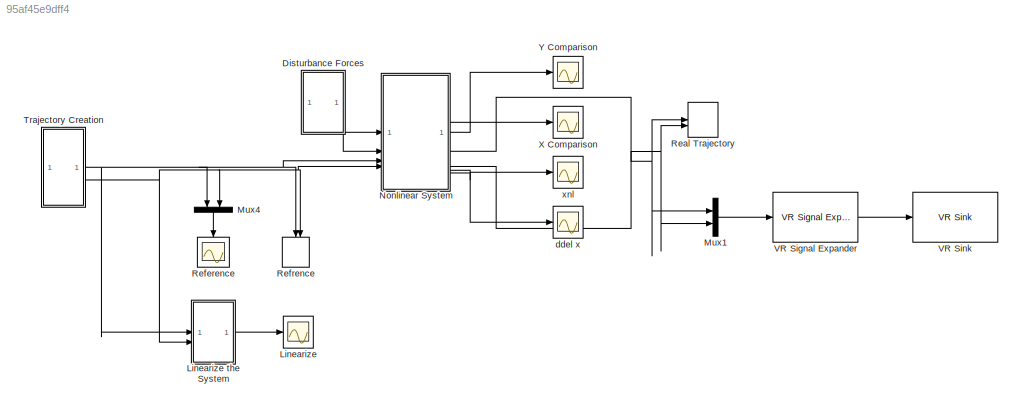
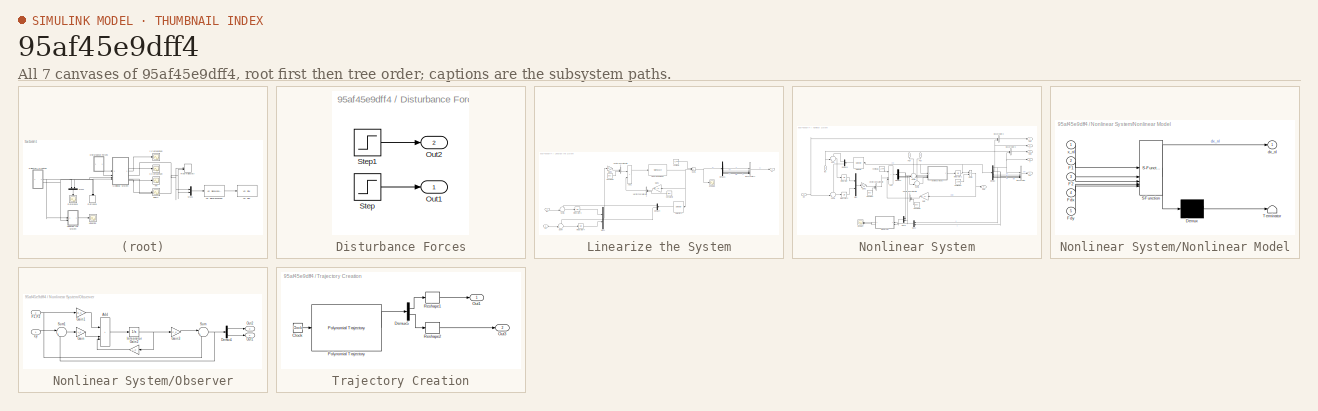
[diagram: thumbnail index - all 7 canvases of the model, root first then tree order]
MODEL slx_95af45e9dff4
KIND model
CONFIG AbsTol = auto
CONFIG EnableMultiTasking = off
CONFIG FixedStep = 0.01
CONFIG MaxStep = auto
CONFIG MinStep = auto
CONFIG RelTol = 1e-3
CONFIG SampleTimeConstraint = Unconstrained
CONFIG SolverName = ode5
CONFIG StartTime = 0.0
CONFIG StopTime = 30
BLOCK [SubSystem] Disturbance Forces
BLOCK [Outport] Disturbance Forces/Out1
BLOCK [Outport] Disturbance Forces/Out2
  Port = 2
BLOCK [Step] Disturbance Forces/Step
  SampleTime = 0
  Time = 10
BLOCK [Step] Disturbance Forces/Step1
  After = 0.5
  SampleTime = 0
  Time = 10
BLOCK [Scope] Linearize
  Floating = off
  NumInputPorts = 1
  ScopeSpecificationString = Simulink.scopes.TimeScopeBlockCfg('CurrentConfiguration', extmgr.ConfigurationSet(extmgr.Configuration('Core','General UI',true),extmgr.Configuration('Core','Source UI',true),extmgr.Configuration('Sources','WiredSimulink',true,'DataLoggingVariableName','grafik','DataLogging',true,'DataLoggingSaveFormat','Array'),extmgr.Configuration('Visuals','Time Domain',true,'SerializedDisplays',{struct('MinYLi...<+1636ch>
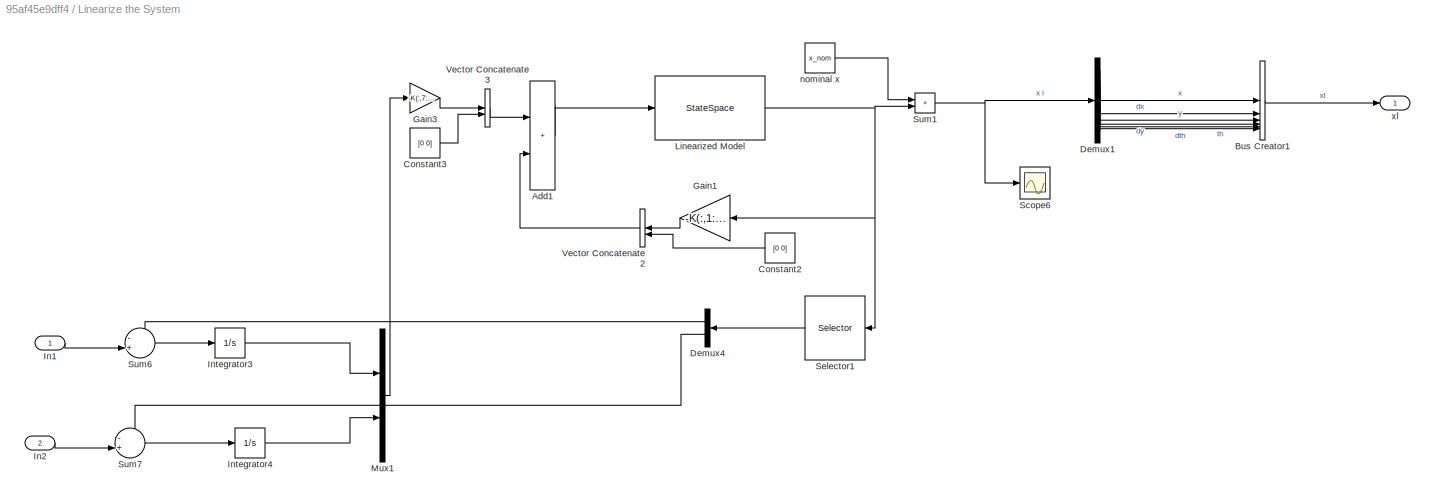
BLOCK [SubSystem] Linearize the System
BLOCK [Sum] Linearize the System/Add1
  IconShape = rectangular
  Inputs = 2
BLOCK [BusCreator] Linearize the System/Bus Creator1
  DisplayOption = bar
  InheritFromInputs = on
  Inputs = 6
BLOCK [Constant] Linearize the System/Constant2
  NameLocation = top
  Value = [0 0]
BLOCK [Constant] Linearize the System/Constant3
  Value = [0 0]
BLOCK [Demux] Linearize the System/Demux1
  Outputs = 6
BLOCK [Demux] Linearize the System/Demux4
  NameLocation = top
  Outputs = 2
BLOCK [Gain] Linearize the System/Gain1
  Gain = -K(:,1:6)
  Multiplication = Matrix(K*u)
  NameLocation = top
BLOCK [Gain] Linearize the System/Gain3
  Gain = -K(:,7:8)
  Multiplication = Matrix(K*u)
BLOCK [Inport] Linearize the System/In1
BLOCK [Inport] Linearize the System/In2
  Port = 2
BLOCK [Integrator] Linearize the System/Integrator3
BLOCK [Integrator] Linearize the System/Integrator4
BLOCK [StateSpace] Linearize the System/Linearized Model
  A = A
  B = B
  C = eye(6)
  D = zeros(6,4)
  InitialCondition = Ic_xl
BLOCK [Mux] Linearize the System/Mux1
  DisplayOption = bar
  Inputs = 2
BLOCK [Scope] Linearize the System/Scope6
  Floating = off
  NumInputPorts = 1
  ScopeSpecificationString = Simulink.scopes.TimeScopeBlockCfg('CurrentConfiguration', extmgr.ConfigurationSet(extmgr.Configuration('Core','General UI',true),extmgr.Configuration('Core','Source UI',true),extmgr.Configuration('Sources','WiredSimulink',true,'DataLoggingVariableName','ScopeData1'),extmgr.Configuration('Visuals','Time Domain',true),extmgr.Configuration('Tools','Plot Navigation',true),extmgr.Configuration('Tools',...<+40ch>
BLOCK [Selector] Linearize the System/Selector1
  IndexOptions = Index vector (dialog)
  Indices = [1 3]
  InputPortWidth = 6
  NameLocation = top
  OutputSizes = 1
BLOCK [Sum] Linearize the System/Sum1
  IconShape = rectangular
BLOCK [Sum] Linearize the System/Sum6
  Inputs = -+|
BLOCK [Sum] Linearize the System/Sum7
  Inputs = -+|
BLOCK [Concatenate] Linearize the System/Vector Concatenate2
  NameLocation = top
BLOCK [Concatenate] Linearize the System/Vector Concatenate3
BLOCK [Constant] Linearize the System/nominal x
  Value = x_nom
BLOCK [Outport] Linearize the System/xl
BLOCK [Mux] Mux1
  DisplayOption = bar
  Inputs = 2
BLOCK [Mux] Mux4
  DisplayOption = bar
  Inputs = 2
  NameLocation = left
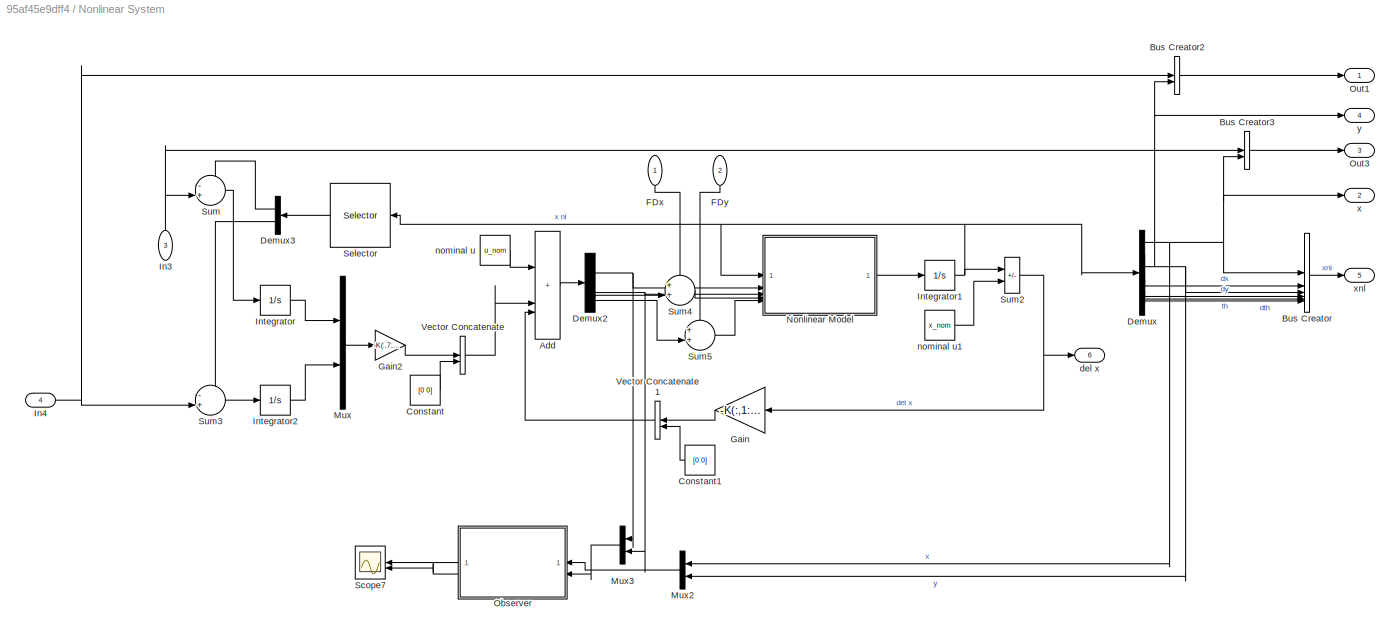
BLOCK [SubSystem] Nonlinear System
BLOCK [Sum] Nonlinear System/Add
  IconShape = rectangular
  Inputs = 3
BLOCK [BusCreator] Nonlinear System/Bus Creator
  DisplayOption = bar
  InheritFromInputs = on
  Inputs = 6
BLOCK [BusCreator] Nonlinear System/Bus Creator2
  DisplayOption = bar
  InheritFromInputs = on
  Inputs = 2
BLOCK [BusCreator] Nonlinear System/Bus Creator3
  DisplayOption = bar
  InheritFromInputs = on
  Inputs = 2
BLOCK [Constant] Nonlinear System/Constant
  Value = [0 0]
BLOCK [Constant] Nonlinear System/Constant1
  NameLocation = top
  Value = [0 0]
BLOCK [Demux] Nonlinear System/Demux
  Outputs = 6
BLOCK [Demux] Nonlinear System/Demux2
BLOCK [Demux] Nonlinear System/Demux3
  NameLocation = top
  Outputs = 2
BLOCK [Inport] Nonlinear System/FDx
  NameLocation = right
BLOCK [Inport] Nonlinear System/FDy
  NameLocation = right
  Port = 2
BLOCK [Gain] Nonlinear System/Gain
  Gain = -K(:,1:6)
  Multiplication = Matrix(K*u)
  NameLocation = top
BLOCK [Gain] Nonlinear System/Gain2
  Gain = -K(:,7:8)
  Multiplication = Matrix(K*u)
BLOCK [Inport] Nonlinear System/In3
  NameLocation = right
  Port = 3
BLOCK [Inport] Nonlinear System/In4
  Port = 4
BLOCK [Integrator] Nonlinear System/Integrator
BLOCK [Integrator] Nonlinear System/Integrator1
  InitialCondition = Ic_xnl
BLOCK [Integrator] Nonlinear System/Integrator2
BLOCK [Mux] Nonlinear System/Mux
  DisplayOption = bar
  Inputs = 2
BLOCK [Mux] Nonlinear System/Mux2
  DisplayOption = bar
  Inputs = 2
  NameLocation = top
BLOCK [Mux] Nonlinear System/Mux3
  DisplayOption = bar
  Inputs = 2
  NameLocation = top
BLOCK [SubSystem] Nonlinear System/Nonlinear Model
  ErrorFcn = Stateflow.Translate.translate
  PermitHierarchicalResolution = ExplicitOnly
  SFBlockType = MATLAB Function
  TreatAsAtomicUnit = on
BLOCK [Demux] Nonlinear System/Nonlinear Model/ Demux 
  Outputs = 1
BLOCK [S-Function] Nonlinear System/Nonlinear Model/ SFunction 
  EnableBusSupport = on
  FunctionName = sf_sfun
  Parameters = I,L,g,h,m
  PortCounts = [5 2]
  SFcnIsStateOwnerBlock = off
  SFunctionDeploymentMode = off
  Tag = Stateflow S-Function 2
BLOCK [Terminator] Nonlinear System/Nonlinear Model/ Terminator 
BLOCK [Inport] Nonlinear System/Nonlinear Model/F1
  Port = 2
BLOCK [Inport] Nonlinear System/Nonlinear Model/F2
  Port = 3
BLOCK [Inport] Nonlinear System/Nonlinear Model/Fdx
  Port = 4
BLOCK [Inport] Nonlinear System/Nonlinear Model/Fdy
  Port = 5
BLOCK [Outport] Nonlinear System/Nonlinear Model/dx_nl
BLOCK [Inport] Nonlinear System/Nonlinear Model/x_nl
BLOCK [SubSystem] Nonlinear System/Observer
  NameLocation = top
BLOCK [Sum] Nonlinear System/Observer/Add
  IconShape = rectangular
  Inputs = 3
BLOCK [Demux] Nonlinear System/Observer/Demux1
  Outputs = 2
BLOCK [Inport] Nonlinear System/Observer/F1,F2
  Port = 2
BLOCK [Gain] Nonlinear System/Observer/Gain
  Gain = L_o
  Multiplication = Matrix(K*u)
BLOCK [Gain] Nonlinear System/Observer/Gain1
  Gain = B_o
  Multiplication = Matrix(K*u)
BLOCK [Gain] Nonlinear System/Observer/Gain2
  Gain = A_o
  Multiplication = Matrix(K*u)
  NameLocation = top
BLOCK [Gain] Nonlinear System/Observer/Gain3
  Gain = C_o
  Multiplication = Matrix(K*u)
BLOCK [Integrator] Nonlinear System/Observer/Integrator
BLOCK [Outport] Nonlinear System/Observer/Out1
BLOCK [Outport] Nonlinear System/Observer/Out2
  Port = 2
BLOCK [Sum] Nonlinear System/Observer/Sum
  Inputs = |++
BLOCK [Sum] Nonlinear System/Observer/Sum1
  Inputs = |+-
BLOCK [Inport] Nonlinear System/Observer/x,y
BLOCK [Outport] Nonlinear System/Out1
BLOCK [Outport] Nonlinear System/Out3
  Port = 3
BLOCK [Scope] Nonlinear System/Scope7
  Floating = off
  NameLocation = top
  NumInputPorts = 2
  ScopeSpecificationString = Simulink.scopes.TimeScopeBlockCfg('CurrentConfiguration', extmgr.ConfigurationSet(extmgr.Configuration('Core','General UI',true),extmgr.Configuration('Core','Source UI',true),extmgr.Configuration('Sources','WiredSimulink',true,'DataLoggingVariableName','ScopeData1'),extmgr.Configuration('Visuals','Time Domain',true,'SerializedDisplays',{struct('MinYLimReal','-2.97127','MaxYLimReal','17.55943','YLa...<+1457ch>
BLOCK [Selector] Nonlinear System/Selector
  IndexOptions = Index vector (dialog)
  Indices = [1 3]
  InputPortWidth = 6
  NameLocation = top
  OutputSizes = 1
BLOCK [Sum] Nonlinear System/Sum
  Inputs = -+|
BLOCK [Sum] Nonlinear System/Sum2
  IconShape = rectangular
  Inputs = |+-
BLOCK [Sum] Nonlinear System/Sum3
  Inputs = -+|
BLOCK [Sum] Nonlinear System/Sum4
  Inputs = ++|
BLOCK [Sum] Nonlinear System/Sum5
  Inputs = ++|
BLOCK [Concatenate] Nonlinear System/Vector Concatenate
BLOCK [Concatenate] Nonlinear System/Vector Concatenate1
  NameLocation = top
BLOCK [Outport] Nonlinear System/del x
  Port = 6
BLOCK [Constant] Nonlinear System/nominal u
  Value = u_nom
BLOCK [Constant] Nonlinear System/nominal u1
  Value = x_nom
BLOCK [Outport] Nonlinear System/x
  NameLocation = top
  Port = 2
BLOCK [Outport] Nonlinear System/xnl
  Port = 5
BLOCK [Outport] Nonlinear System/y
  NameLocation = top
  Port = 4
BLOCK [Record] Real Trajectory
  CompatibilityTag = XY
  FileSettingsInternal = {"entries":[{"content":{"excelSettings":{"content":{},"type":"Streamout.ExcelSettings"}},"type":"Streamout.FileSettingStorage","uuid":""}],"packageUris":["http:\/\/schema.mathworks.com\/mf0\/streamout_blocks\/R2020a"],"version":"1.0"}
  Layout = [1 1]
  SignalsInternal = {"entries":[{"content":{"signals":[{"content":{"blockPath":[],"dimensions":[1],"domain":"","lineColor":"#a2142f","plots":[1],"port":1,"sid":[""],"signalID":4664,"signalName":"Nonlinear System:2"},"type":"RecordBlkView.Signal","uuid":""},{"content":{"blockPath":[],"dimensions":[1],"domain":"","lineColor":"#139fff","plots":[1],"port":2,"sid":[""],"signalID":4668,"signalName":"Nonlinear System:4"},"t...<+184ch>
  VisualizationBindings = {"xyplotplugin":{"info":[{"series":[{"bindingParametersList":[{"parameter":"X-Axis","signalID":4664,"signalName":"Nonlinear System:2"},{"parameter":"Y-Axis","signalID":4668,"signalName":"Nonlinear System:4"}],"seriesID":43140}],"subplotID":1}]}}
  st = -1
BLOCK [Scope] Reference
  Floating = off
  NameLocation = left
  NumInputPorts = 1
  ScopeSpecificationString = Simulink.scopes.TimeScopeBlockCfg('CurrentConfiguration', extmgr.ConfigurationSet(extmgr.Configuration('Core','General UI',true),extmgr.Configuration('Core','Source UI',true),extmgr.Configuration('Sources','WiredSimulink',true,'DataLoggingVariableName','grafik2','DataLogging',true,'DataLoggingSaveFormat','Array'),extmgr.Configuration('Visuals','Time Domain',true,'SerializedDisplays',{struct('MinYL...<+1450ch>
BLOCK [Record] Refrence 
  CompatibilityTag = XY
  FileSettingsInternal = {"entries":[{"content":{"excelSettings":{"content":{},"type":"Streamout.ExcelSettings"}},"type":"Streamout.FileSettingStorage","uuid":""}],"packageUris":["http:\/\/schema.mathworks.com\/mf0\/streamout_blocks\/R2020a"],"version":"1.0"}
  Layout = [1 1]
  NameLocation = left
  SignalsInternal = {"entries":[{"content":{"signals":[{"content":{"blockPath":[],"dimensions":[1],"domain":"","lineColor":"#a2142f","plots":[1],"port":1,"sid":[""],"signalID":4672,"signalName":"Trajectory Creation:1"},"type":"RecordBlkView.Signal","uuid":""},{"content":{"blockPath":[],"dimensions":[1],"domain":"","lineColor":"#139fff","plots":[1],"port":2,"sid":[""],"signalID":4676,"signalName":"Trajectory Creation:...<+190ch>
  VisualizationBindings = {"xyplotplugin":{"info":[{"series":[{"bindingParametersList":[{"parameter":"X-Axis","signalID":4672,"signalName":"Trajectory Creation:1"},{"parameter":"Y-Axis","signalID":4676,"signalName":"Trajectory Creation:2"}],"seriesID":33322}],"subplotID":1}]}}
  st = -1
BLOCK [SubSystem] Trajectory Creation
BLOCK [Clock] Trajectory Creation/Clock
BLOCK [Demux] Trajectory Creation/Demux5
  Outputs = 2
BLOCK [Outport] Trajectory Creation/Out1
BLOCK [Outport] Trajectory Creation/Out3
  Port = 2
BLOCK [Reference] Trajectory Creation/Polynomial Trajectory  REF=robotcorelib/Polynomial Trajectory
  SourceBlock = robotcorelib/Polynomial Trajectory
  SourceType = robotics.slcore.internal.block.PolyTrajSys
BLOCK [Reshape] Trajectory Creation/Reshape1
BLOCK [Reshape] Trajectory Creation/Reshape2
BLOCK [Reference] VR Signal Expander  REF=vrlib/VR Signal Expander
  SourceBlock = vrlib/VR Signal Expander
  SourceType = VR Signal Expander
BLOCK [Reference] VR Sink  REF=vrlib/VR Sink
  InstantiateOnLoad = on
  SourceBlock = vrlib/VR Sink
  SourceType = Virtual Reality Sink
BLOCK [Scope] X Comparison
  Floating = off
  NumInputPorts = 1
  ScopeSpecificationString = Simulink.scopes.TimeScopeBlockCfg('CurrentConfiguration', extmgr.ConfigurationSet(extmgr.Configuration('Core','General UI',true),extmgr.Configuration('Core','Source UI',true),extmgr.Configuration('Sources','WiredSimulink',true,'DataLoggingVariableName','xscope','DataLogging',true,'DataLoggingSaveFormat','Array'),extmgr.Configuration('Visuals','Time Domain',true,'SerializedDisplays',{struct('MinYLi...<+1513ch>
BLOCK [Scope] Y Comparison
  Floating = off
  NumInputPorts = 1
  ScopeSpecificationString = Simulink.scopes.TimeScopeBlockCfg('CurrentConfiguration', extmgr.ConfigurationSet(extmgr.Configuration('Core','General UI',true),extmgr.Configuration('Core','Source UI',true),extmgr.Configuration('Sources','WiredSimulink',true,'DataLoggingVariableName','yscope','DataLogging',true,'DataLoggingSaveFormat','Array'),extmgr.Configuration('Visuals','Time Domain',true,'SerializedDisplays',{struct('MinYLi...<+1505ch>
BLOCK [Scope] ddel x
  Floating = off
  NumInputPorts = 1
  ScopeSpecificationString = Simulink.scopes.TimeScopeBlockCfg('CurrentConfiguration', extmgr.ConfigurationSet(extmgr.Configuration('Core','General UI',true),extmgr.Configuration('Core','Source UI',true),extmgr.Configuration('Sources','WiredSimulink',true,'DataLoggingVariableName','ScopeData3'),extmgr.Configuration('Visuals','Time Domain',true,'SerializedDisplays',{struct('MinYLimReal','-3.03593','MaxYLimReal','17.56661','YLa...<+1574ch>
BLOCK [Scope] xnl
  Floating = off
  NumInputPorts = 1
  ScopeSpecificationString = Simulink.scopes.TimeScopeBlockCfg('CurrentConfiguration', extmgr.ConfigurationSet(extmgr.Configuration('Core','General UI',true),extmgr.Configuration('Core','Source UI',true),extmgr.Configuration('Sources','WiredSimulink',true,'DataLoggingVariableName','ScopeData1'),extmgr.Configuration('Visuals','Time Domain',true,'SerializedDisplays',{struct('MinYLimReal','-3.03593','MaxYLimReal','17.56661','YLa...<+1567ch>
LINE Disturbance Forces/Step1:1 -> Disturbance Forces/Out2:1
LINE Disturbance Forces/Step:1 -> Disturbance Forces/Out1:1
LINE Disturbance Forces:1 -> Nonlinear System:1
LINE Disturbance Forces:2 -> Nonlinear System:2
LINE Linearize the System/Add1:1 -> Linearize the System/Linearized Model:1
LINE Linearize the System/Bus Creator1:1 -> Linearize the System/xl:1
LINE Linearize the System/Constant2:1 -> Linearize the System/Vector Concatenate2:2
LINE Linearize the System/Constant3:1 -> Linearize the System/Vector Concatenate3:2
LINE Linearize the System/Demux1:1 -> Linearize the System/Bus Creator1:1
LINE Linearize the System/Demux1:2 -> Linearize the System/Bus Creator1:2
LINE Linearize the System/Demux1:3 -> Linearize the System/Bus Creator1:3
LINE Linearize the System/Demux1:4 -> Linearize the System/Bus Creator1:4
LINE Linearize the System/Demux1:5 -> Linearize the System/Bus Creator1:5
LINE Linearize the System/Demux1:6 -> Linearize the System/Bus Creator1:6
LINE Linearize the System/Demux4:1 -> Linearize the System/Sum6:1
LINE Linearize the System/Demux4:2 -> Linearize the System/Sum7:1
LINE Linearize the System/Gain1:1 -> Linearize the System/Vector Concatenate2:1
LINE Linearize the System/Gain3:1 -> Linearize the System/Vector Concatenate3:1
LINE Linearize the System/In1:1 -> Linearize the System/Sum6:2
LINE Linearize the System/In2:1 -> Linearize the System/Sum7:2
LINE Linearize the System/Integrator3:1 -> Linearize the System/Mux1:1
LINE Linearize the System/Integrator4:1 -> Linearize the System/Mux1:2
NET Linearize the System/Linearized Model:1 -> Linearize the System/Gain1:1, Linearize the System/Selector1:1, Linearize the System/Sum1:2
LINE Linearize the System/Mux1:1 -> Linearize the System/Gain3:1
LINE Linearize the System/Selector1:1 -> Linearize the System/Demux4:1
NET Linearize the System/Sum1:1 -> Linearize the System/Demux1:1, Linearize the System/Scope6:1
LINE Linearize the System/Sum6:1 -> Linearize the System/Integrator3:1
LINE Linearize the System/Sum7:1 -> Linearize the System/Integrator4:1
LINE Linearize the System/Vector Concatenate2:1 -> Linearize the System/Add1:2
LINE Linearize the System/Vector Concatenate3:1 -> Linearize the System/Add1:1
LINE Linearize the System/nominal x:1 -> Linearize the System/Sum1:1
LINE Linearize the System:1 -> Linearize:1
LINE Mux1:1 -> VR Signal Expander:1
LINE Mux4:1 -> Reference:1
LINE Nonlinear System/Add:1 -> Nonlinear System/Demux2:1
LINE Nonlinear System/Bus Creator2:1 -> Nonlinear System/Out1:1
LINE Nonlinear System/Bus Creator3:1 -> Nonlinear System/Out3:1
LINE Nonlinear System/Bus Creator:1 -> Nonlinear System/xnl:1
LINE Nonlinear System/Constant1:1 -> Nonlinear System/Vector Concatenate1:2
LINE Nonlinear System/Constant:1 -> Nonlinear System/Vector Concatenate:2
NET Nonlinear System/Demux2:1 -> Nonlinear System/Mux3:1, Nonlinear System/Nonlinear Model:2
NET Nonlinear System/Demux2:2 -> Nonlinear System/Mux3:2, Nonlinear System/Nonlinear Model:3
LINE Nonlinear System/Demux2:3 -> Nonlinear System/Sum4:2
LINE Nonlinear System/Demux2:4 -> Nonlinear System/Sum5:2
LINE Nonlinear System/Demux3:1 -> Nonlinear System/Sum:1
LINE Nonlinear System/Demux3:2 -> Nonlinear System/Sum3:1
NET Nonlinear System/Demux:1 -> Nonlinear System/Bus Creator3:2, Nonlinear System/Bus Creator:1, Nonlinear System/Mux2:1, Nonlinear System/x:1
LINE Nonlinear System/Demux:2 -> Nonlinear System/Bus Creator:2
NET Nonlinear System/Demux:3 -> Nonlinear System/Bus Creator2:2, Nonlinear System/Bus Creator:3, Nonlinear System/Mux2:2, Nonlinear System/y:1
LINE Nonlinear System/Demux:4 -> Nonlinear System/Bus Creator:4
LINE Nonlinear System/Demux:5 -> Nonlinear System/Bus Creator:5
LINE Nonlinear System/Demux:6 -> Nonlinear System/Bus Creator:6
LINE Nonlinear System/FDx:1 -> Nonlinear System/Sum4:1
LINE Nonlinear System/FDy:1 -> Nonlinear System/Sum5:1
LINE Nonlinear System/Gain2:1 -> Nonlinear System/Vector Concatenate:1
LINE Nonlinear System/Gain:1 -> Nonlinear System/Vector Concatenate1:1
NET Nonlinear System/In3:1 -> Nonlinear System/Bus Creator3:1, Nonlinear System/Sum:2
NET Nonlinear System/In4:1 -> Nonlinear System/Bus Creator2:1, Nonlinear System/Sum3:2
NET Nonlinear System/Integrator1:1 -> Nonlinear System/Demux:1, Nonlinear System/Nonlinear Model:1, Nonlinear System/Selector:1, Nonlinear System/Sum2:1
LINE Nonlinear System/Integrator2:1 -> Nonlinear System/Mux:2
LINE Nonlinear System/Integrator:1 -> Nonlinear System/Mux:1
LINE Nonlinear System/Mux2:1 -> Nonlinear System/Observer:1
LINE Nonlinear System/Mux3:1 -> Nonlinear System/Observer:2
LINE Nonlinear System/Mux:1 -> Nonlinear System/Gain2:1
LINE Nonlinear System/Nonlinear Model:1 -> Nonlinear System/Integrator1:1
LINE Nonlinear System/Observer/Add:1 -> Nonlinear System/Observer/Integrator:1
LINE Nonlinear System/Observer/Demux1:1 -> Nonlinear System/Observer/Out2:1
LINE Nonlinear System/Observer/Demux1:2 -> Nonlinear System/Observer/Out1:1
NET Nonlinear System/Observer/F1,F2:1 -> Nonlinear System/Observer/Gain1:1, Nonlinear System/Observer/Sum:2
LINE Nonlinear System/Observer/Gain1:1 -> Nonlinear System/Observer/Add:1
LINE Nonlinear System/Observer/Gain2:1 -> Nonlinear System/Observer/Add:3
LINE Nonlinear System/Observer/Gain3:1 -> Nonlinear System/Observer/Sum:1
LINE Nonlinear System/Observer/Gain:1 -> Nonlinear System/Observer/Add:2
NET Nonlinear System/Observer/Integrator:1 -> Nonlinear System/Observer/Gain2:1, Nonlinear System/Observer/Gain3:1
LINE Nonlinear System/Observer/Sum1:1 -> Nonlinear System/Observer/Gain:1
NET Nonlinear System/Observer/Sum:1 -> Nonlinear System/Observer/Demux1:1, Nonlinear System/Observer/Sum1:2
LINE Nonlinear System/Observer/x,y:1 -> Nonlinear System/Observer/Sum1:1
LINE Nonlinear System/Observer:1 -> Nonlinear System/Scope7:1
LINE Nonlinear System/Observer:2 -> Nonlinear System/Scope7:2
LINE Nonlinear System/Selector:1 -> Nonlinear System/Demux3:1
NET Nonlinear System/Sum2:1 -> Nonlinear System/Gain:1, Nonlinear System/del x:1
LINE Nonlinear System/Sum3:1 -> Nonlinear System/Integrator2:1
LINE Nonlinear System/Sum4:1 -> Nonlinear System/Nonlinear Model:4
LINE Nonlinear System/Sum5:1 -> Nonlinear System/Nonlinear Model:5
LINE Nonlinear System/Sum:1 -> Nonlinear System/Integrator:1
LINE Nonlinear System/Vector Concatenate1:1 -> Nonlinear System/Add:3
LINE Nonlinear System/Vector Concatenate:1 -> Nonlinear System/Add:2
LINE Nonlinear System/nominal u1:1 -> Nonlinear System/Sum2:2
LINE Nonlinear System/nominal u:1 -> Nonlinear System/Add:1
LINE Nonlinear System:1 -> Y Comparison:1
NET Nonlinear System:2 -> Mux1:1, Real Trajectory:1
LINE Nonlinear System:3 -> X Comparison:1
NET Nonlinear System:4 -> Mux1:2, Real Trajectory:2
LINE Nonlinear System:5 -> xnl:1
LINE Nonlinear System:6 -> ddel x:1
LINE Trajectory Creation/Clock:1 -> Trajectory Creation/Polynomial Trajectory:1
LINE Trajectory Creation/Demux5:1 -> Trajectory Creation/Reshape1:1
LINE Trajectory Creation/Demux5:2 -> Trajectory Creation/Reshape2:1
LINE Trajectory Creation/Polynomial Trajectory:1 -> Trajectory Creation/Demux5:1
LINE Trajectory Creation/Reshape1:1 -> Trajectory Creation/Out1:1
LINE Trajectory Creation/Reshape2:1 -> Trajectory Creation/Out3:1
NET Trajectory Creation:1 -> Linearize the System:1, Mux4:1, Nonlinear System:3, Refrence :1
NET Trajectory Creation:2 -> Linearize the System:2, Mux4:2, Nonlinear System:4, Refrence :2
LINE VR Signal Expander:1 -> VR Sink:1
note: NET lines group one-source signal fan-out (src -> all destinations, sorted); 1:1 wires keep LINE
CHART Nonlinear System/Nonlinear Model states=1 transitions=1
  STATE_LABEL 'eML_blk_kernel()'
  STATE_LABEL 'SCRIPT:\nfunction dx_nl = fcn(x_nl,h, L, g, I, m, F1, F2,Fdx,Fdy)\n\nx=x_nl(1);\ndx=x_nl(2);\ny=x_nl(3);\ndy=x_nl(4);\nth=x_nl(5);\ndth=x_nl(6);\n\n\n\nf_ddx= (-(F1+F2)*sin(th)+Fdx)/m;\nf_ddy= ((F1+F2)*cos(th)-m*g+Fdy)/m;\nf_ddth=((F1-F2)*L+Fdx*h*cos(th)+Fdy*h*sin(th))/I;\n\n\ndx_nl=[dx;f_ddx;dy;f_ddy;dth;f_ddth];\n\n\n'
CHART  states=0 transitions=0
